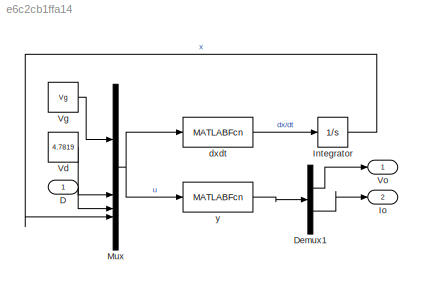
MODEL slx_e6c2cb1ffa14
KIND model
CONFIG AbsTol = auto
CONFIG EnableMultiTasking = off
CONFIG FixedStep = auto
CONFIG MaxStep = auto
CONFIG MinStep = auto
CONFIG RelTol = 1e-3
CONFIG SampleTimeConstraint = Unconstrained
CONFIG SolverName = VariableStepAuto
CONFIG StartTime = 0.0
CONFIG StopTime = 10.0
WORKSPACE source: mxarray member
WORKSPACE VD = 0.8
BLOCK [Inport] D
BLOCK [Demux] Demux1
  Outputs = 2
BLOCK [Integrator] Integrator
  InitialCondition = [3.4161\n ;  24.0000]
BLOCK [Outport] Io
  Port = 2
BLOCK [Mux] Mux
  DisplayOption = bar
BLOCK [Constant] Vd
  Value = 4.7819
BLOCK [Constant] Vg
  Value = Vg
BLOCK [Outport] Vo
BLOCK [MATLABFcn] dxdt
  MATLABFcn = (u(3)*A1+(1-u(3))*A2)*[u(4);u(5)]+(u(3)*B1+(1-u(3))*B2)*[u(1);u(2)]
  OutputDimensions = 2
BLOCK [MATLABFcn] y
  MATLABFcn = (u(3)*E1+(1-u(3))*E2)*[u(4);u(5)]+(u(3)*F1+(1-u(3))*F2)*[u(1);u(2)]
  OutputDimensions = 2
LINE D:1 -> Mux:3
LINE Demux1:1 -> Vo:1
LINE Demux1:2 -> Io:1
LINE Integrator:1 -> Mux:4
NET Mux:1 -> dxdt:1, y:1
LINE Vd:1 -> Mux:2
LINE Vg:1 -> Mux:1
LINE dxdt:1 -> Integrator:1
LINE y:1 -> Demux1:1
note: NET lines group one-source signal fan-out (src -> all destinations, sorted); 1:1 wires keep LINE
